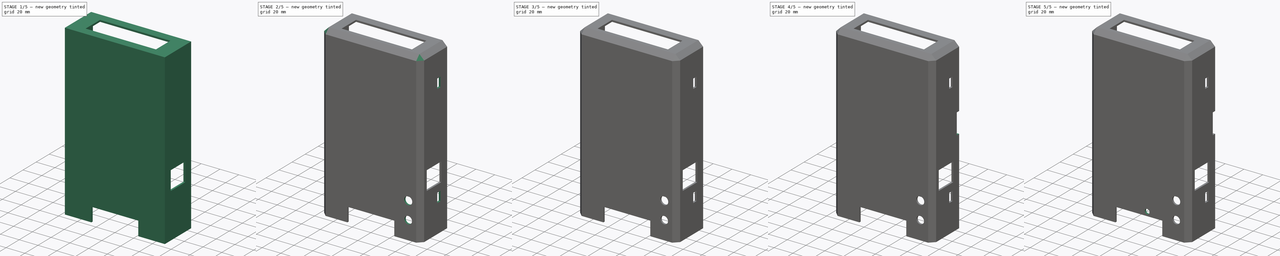
[diagram: build sequence overview — one tinted view per stage of 5, left to right]
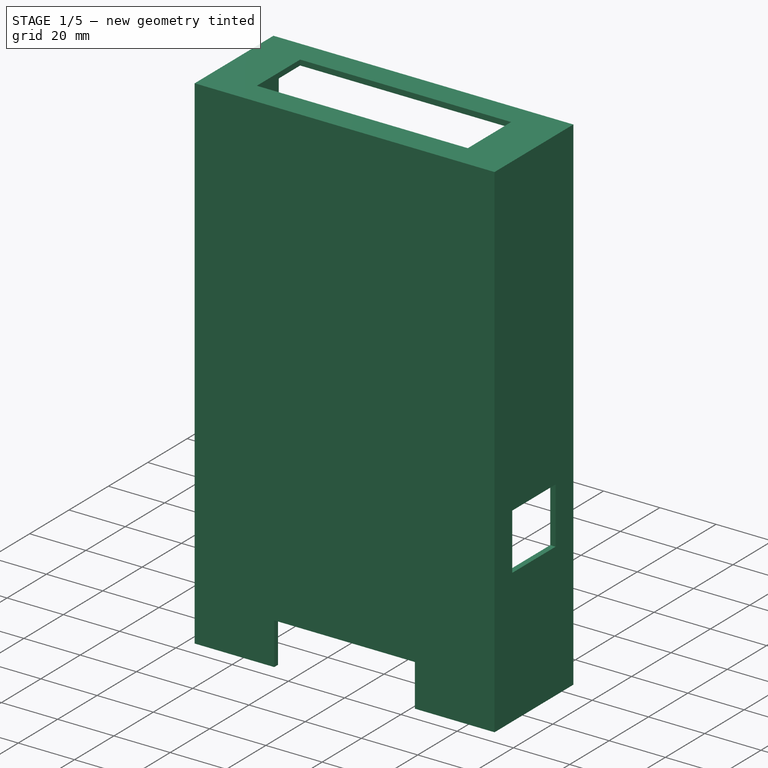
[diagram: stage 1 of 5 — iso view after this stage's code; geometry added in this stage tinted green]
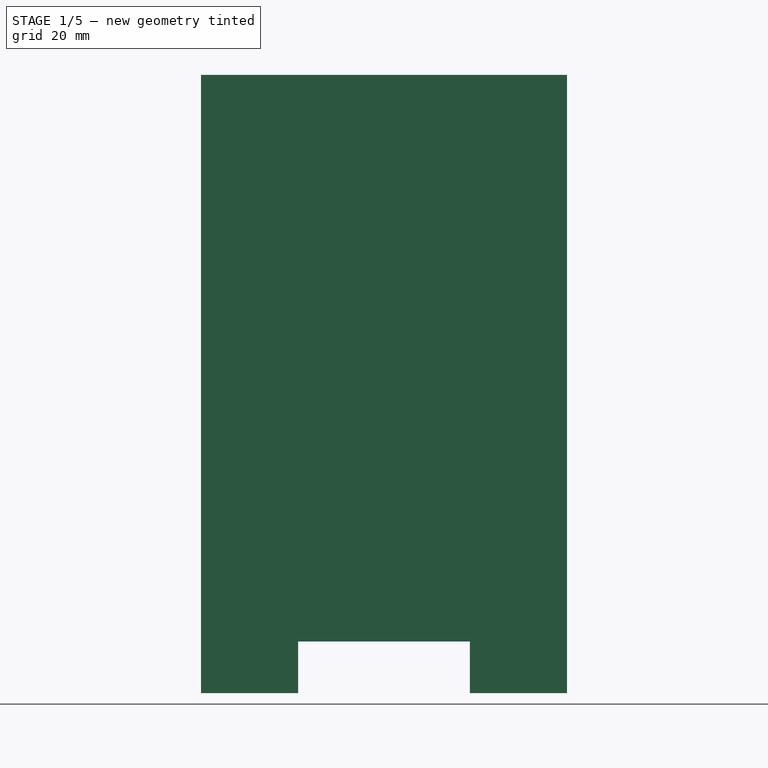
[diagram: stage 1 of 5 — front view after this stage's code; geometry added in this stage tinted green]
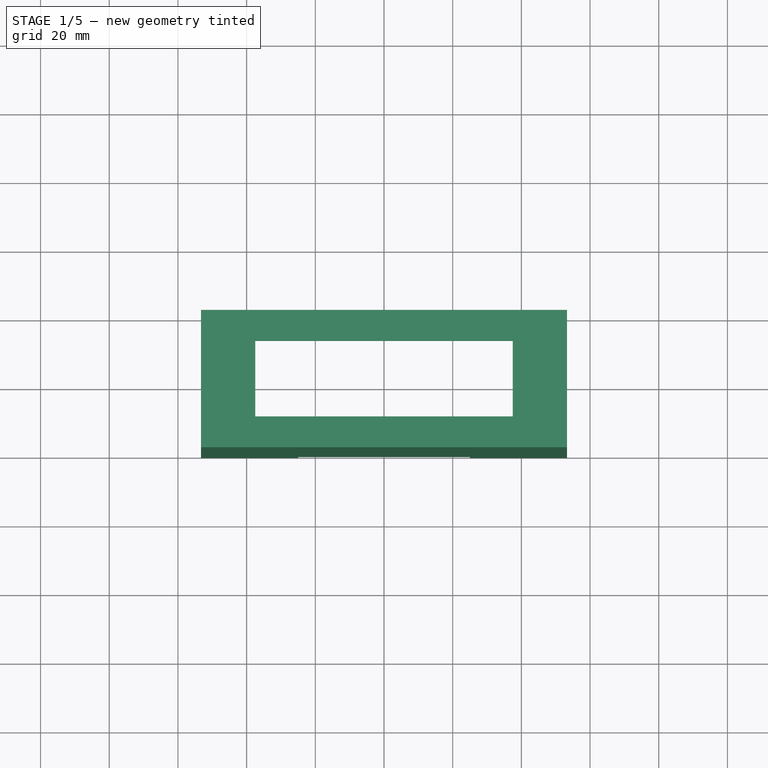
[diagram: stage 1 of 5 — top view after this stage's code; geometry added in this stage tinted green]
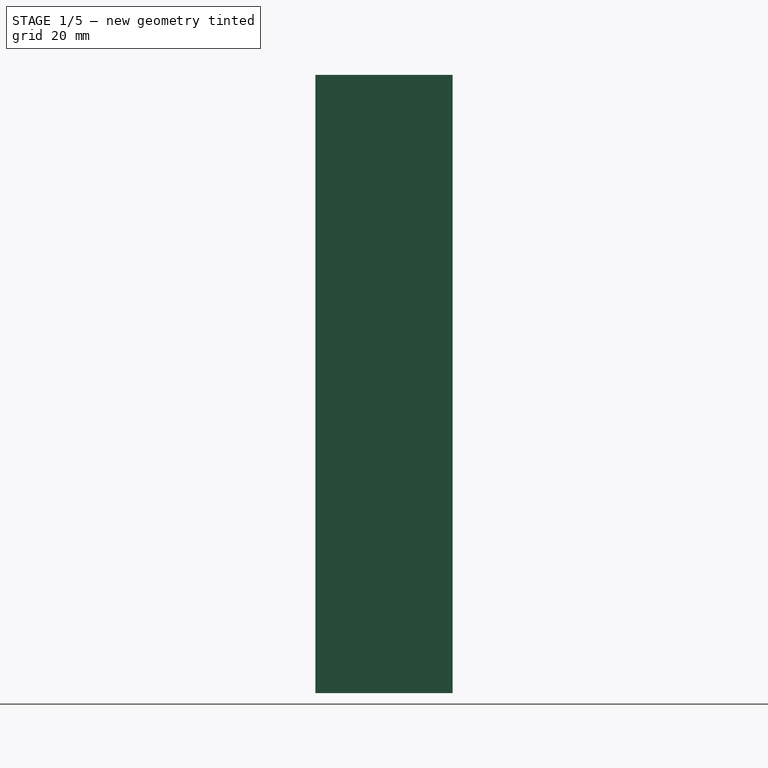
[diagram: stage 1 of 5 — right view after this stage's code; geometry added in this stage tinted green]
FCSTD DOCUMENT  (FreeCAD 0.19R19180 (Git))
Label: cover_mk2
License: All rights reserved
LicenseURL: http://en.wikipedia.org/wiki/All_rights_reserved
objects: Sketcher::SketchObject×20, PartDesign::Pocket×16, PartDesign::Chamfer×8, PartDesign::Pad×4, PartDesign::Body×1
note: 69 computed .brp shape members not serialized (recipe doc carries the construction recipe); baked Part::Feature solids carry a one-line shape summary decoded from their .brp

FEATURE [Sketcher::SketchObject] Sketch
  MapMode = 5
  Support = -> [XY_Plane]
  sketch-geometry (4):
    g0: LineSegment StartX=-53.3 StartY=20 StartZ=0 EndX=53.3 EndY=20 EndZ=0
    g1: LineSegment StartX=53.3 StartY=20 StartZ=0 EndX=53.3 EndY=-20 EndZ=0
    g2: LineSegment StartX=53.3 StartY=-20 StartZ=0 EndX=-53.3 EndY=-20 EndZ=0
    g3: LineSegment StartX=-53.3 StartY=-20 StartZ=0 EndX=-53.3 EndY=20 EndZ=0
  constraints (12):
    c: Coincident(g0,g1)
    c: Coincident(g1,g2)
    c: Coincident(g2,g3)
    c: Coincident(g3,g0)
    c: Horizontal(g0)
    c: Horizontal(g2)
    c: Vertical(g1)
    c: Vertical(g3)
    c: DistanceX(g0,g0) = 106.6
    c: DistanceY(g3,g3) = 40
    c: DistanceY(g-1,g0) = 20
    c: DistanceX(g0,g-1) = 53.3
FEATURE [PartDesign::Pad] Pad
  Length = 180
  Length2 = 100
  Profile = -> Sketch
  Type = 0
FEATURE [Sketcher::SketchObject] Sketch001
  ExternalGeometry = -> [Pad]
  MapMode = 5
  Placement = pos=(0,20,0) rot=(0,0.707107,0.707107;3.14159rad)
  Support = -> [Pad]
  sketch-geometry (4):
    g0: LineSegment StartX=-51.4 StartY=178.1 StartZ=0 EndX=51.4 EndY=178.1 EndZ=0
    g1: LineSegment StartX=51.4 StartY=178.1 StartZ=0 EndX=51.4 EndY=1.9 EndZ=0
    g2: LineSegment StartX=51.4 StartY=1.9 StartZ=0 EndX=-51.4 EndY=1.9 EndZ=0
    g3: LineSegment StartX=-51.4 StartY=1.9 StartZ=0 EndX=-51.4 EndY=178.1 EndZ=0
  constraints (12):
    c: Coincident(g0,g1)
    c: Coincident(g1,g2)
    c: Coincident(g2,g3)
    c: Coincident(g3,g0)
    c: Horizontal(g0)
    c: Horizontal(g2)
    c: Vertical(g1)
    c: Vertical(g3)
    c: DistanceX(g1,g-3) = 1.9
    c: DistanceY(g-3,g1) = 1.9
    c: DistanceY(g0,g-4) = 1.9
    c: DistanceX(g-4,g0) = 1.9
FEATURE [PartDesign::Pocket] Pocket
  BaseFeature = -> Pad
  Length = 38.1
  Length2 = 100
  Profile = -> Sketch001
  Type = 0
FEATURE [Sketcher::SketchObject] Sketch002
  ExternalGeometry = -> [Pocket]
  MapMode = 5
  Placement = pos=(0,20,0) rot=(0,0.707107,0.707107;3.14159rad)
  Support = -> [Pocket]
  sketch-geometry (4):
    g0: LineSegment StartX=-51.4 StartY=1.9 StartZ=0 EndX=51.4 EndY=1.9 EndZ=0
    g1: LineSegment StartX=51.4 StartY=1.9 StartZ=0 EndX=51.4 EndY=0 EndZ=0
    g2: LineSegment StartX=51.4 StartY=0 StartZ=0 EndX=-51.4 EndY=0 EndZ=0
    g3: LineSegment StartX=-51.4 StartY=0 StartZ=0 EndX=-51.4 EndY=1.9 EndZ=0
  constraints (11):
    c: Coincident(g0,g1)
    c: Coincident(g1,g2)
    c: Coincident(g2,g3)
    c: Coincident(g3,g0)
    c: Horizontal(g0)
    c: Horizontal(g2)
    c: Vertical(g1)
    c: Vertical(g3)
    c: Coincident(g0,g-3)
    c: DistanceY(g-4,g2) = 0
    c: DistanceX(g0,g-5) = 0
FEATURE [PartDesign::Pocket] Pocket001
  BaseFeature = -> Pocket
  Length = 38.1
  Length2 = 100
  Profile = -> Sketch002
  Type = 0
FEATURE [Sketcher::SketchObject] Sketch003
  MapMode = 5
  Placement = pos=(0,-20,0) rot=(1,0,0;1.5708rad)
  Support = -> [Pocket001]
  sketch-geometry (4):
    g0: LineSegment StartX=-25 StartY=0 StartZ=0 EndX=25 EndY=0 EndZ=0
    g1: LineSegment StartX=25 StartY=0 StartZ=0 EndX=25 EndY=15 EndZ=0
    g2: LineSegment StartX=25 StartY=15 StartZ=0 EndX=-25 EndY=15 EndZ=0
    g3: LineSegment StartX=-25 StartY=15 StartZ=0 EndX=-25 EndY=0 EndZ=0
  constraints (12):
    c: Coincident(g0,g1)
    c: Coincident(g1,g2)
    c: Coincident(g2,g3)
    c: Coincident(g3,g0)
    c: Horizontal(g0)
    c: Horizontal(g2)
    c: Vertical(g1)
    c: Vertical(g3)
    c: DistanceY(g-1,g0) = 0
    c: DistanceX(g2,g2) = 50
    c: DistanceX(g2,g-1) = 25
    c: DistanceY(g1,g1) = 15
FEATURE [PartDesign::Pocket] Pocket002
  BaseFeature = -> Pocket001
  Length = 5
  Length2 = 100
  Profile = -> Sketch003
  Type = 0
FEATURE [Sketcher::SketchObject] Sketch004
  MapMode = 5
  Placement = pos=(53.3,0,0) rot=(0.57735,0.57735,0.57735;2.0944rad)
  Support = -> [Pocket002]
  sketch-geometry (4):
    g0: LineSegment StartX=-11 StartY=67.7873 StartZ=0 EndX=11 EndY=67.7873 EndZ=0
    g1: LineSegment StartX=11 StartY=67.7873 StartZ=0 EndX=11 EndY=47.7873 EndZ=0
    g2: LineSegment StartX=11 StartY=47.7873 StartZ=0 EndX=-11 EndY=47.7873 EndZ=0
    g3: LineSegment StartX=-11 StartY=47.7873 StartZ=0 EndX=-11 EndY=67.7873 EndZ=0
  constraints (11):
    c: Coincident(g0,g1)
    c: Coincident(g1,g2)
    c: Coincident(g2,g3)
    c: Coincident(g3,g0)
    c: Horizontal(g0)
    c: Horizontal(g2)
    c: Vertical(g1)
    c: Vertical(g3)
    c: DistanceX(g0,g0) = 22
    c: DistanceX(g2,g-1) = 11
    c: DistanceY(g1,g1) = 20
FEATURE [PartDesign::Pocket] Pocket003
  BaseFeature = -> Pocket002
  Length = 5
  Length2 = 100
  Profile = -> Sketch004
  Type = 0
FEATURE [Sketcher::SketchObject] Sketch005
  MapMode = 5
  Placement = pos=(0,0,180) rot=(0,0,1;0rad)
  Support = -> [Pocket003]
  sketch-geometry (4):
    g0: LineSegment StartX=-37.5 StartY=11 StartZ=0 EndX=37.5 EndY=11 EndZ=0
    g1: LineSegment StartX=37.5 StartY=11 StartZ=0 EndX=37.5 EndY=-11 EndZ=0
    g2: LineSegment StartX=37.5 StartY=-11 StartZ=0 EndX=-37.5 EndY=-11 EndZ=0
    g3: LineSegment StartX=-37.5 StartY=-11 StartZ=0 EndX=-37.5 EndY=11 EndZ=0
  constraints (12):
    c: Coincident(g0,g1)
    c: Coincident(g1,g2)
    c: Coincident(g2,g3)
    c: Coincident(g3,g0)
    c: Horizontal(g0)
    c: Horizontal(g2)
    c: Vertical(g1)
    c: Vertical(g3)
    c: DistanceY(g1,g1) = 22
    c: DistanceY(g-1,g0) = 11
    c: DistanceX(g0,g0) = 75
    c: DistanceX(g0,g-1) = 37.5
FEATURE [PartDesign::Pocket] Pocket004
  BaseFeature = -> Pocket003
  Length = 5
  Length2 = 100
  Profile = -> Sketch005
  Type = 0
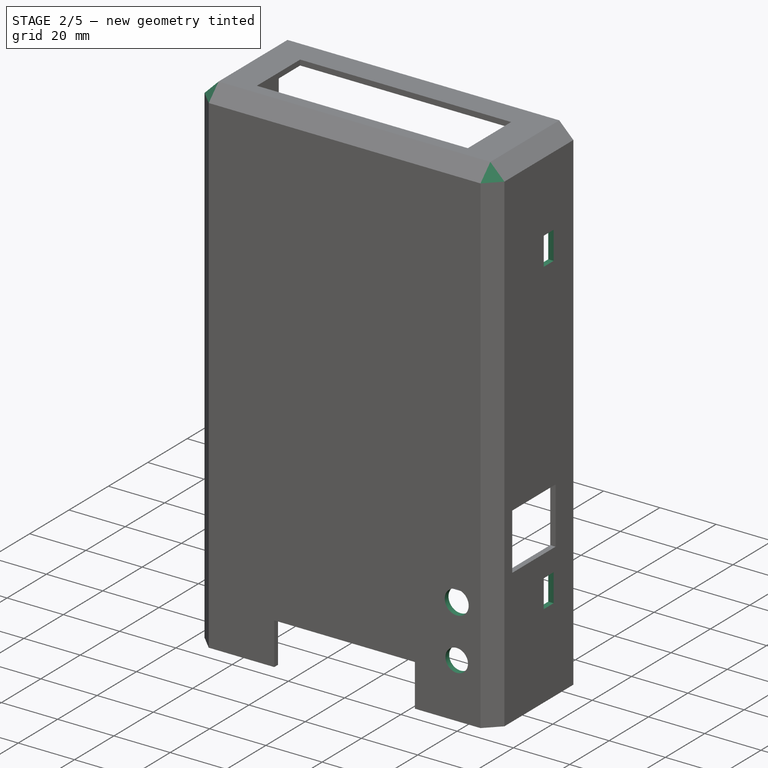
[diagram: stage 2 of 5 — iso view after this stage's code; geometry added in this stage tinted green]
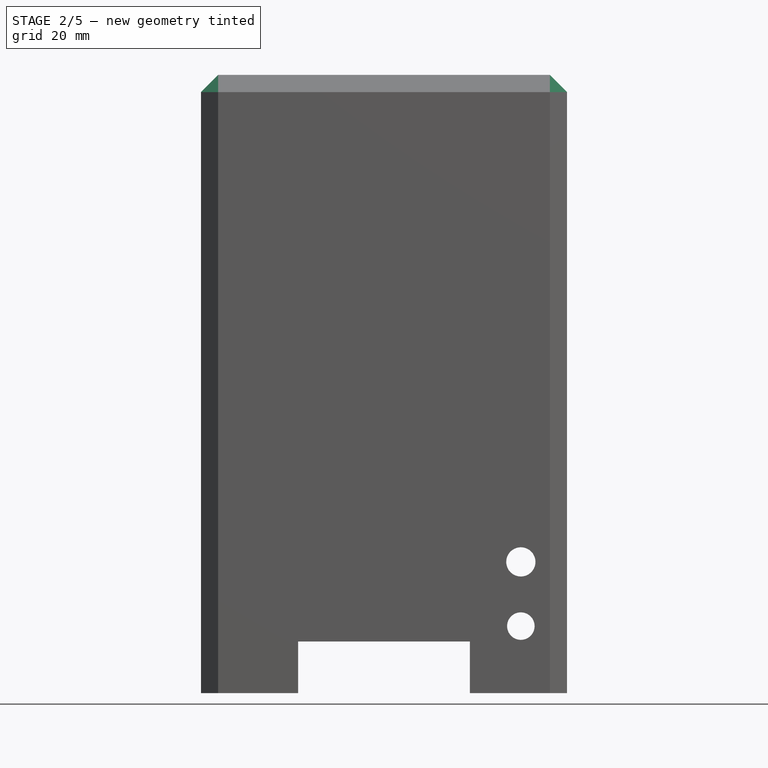
[diagram: stage 2 of 5 — front view after this stage's code; geometry added in this stage tinted green]
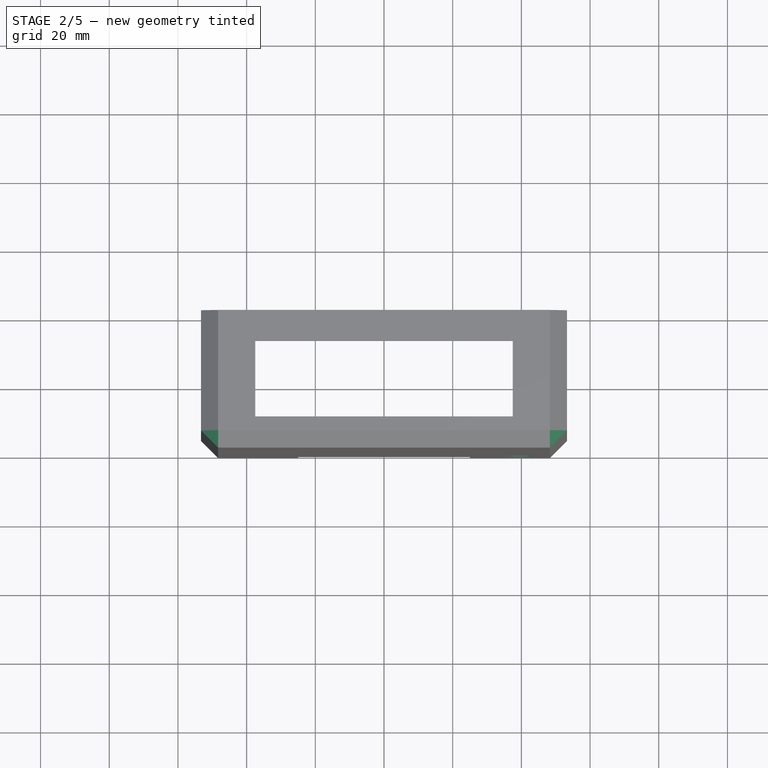
[diagram: stage 2 of 5 — top view after this stage's code; geometry added in this stage tinted green]
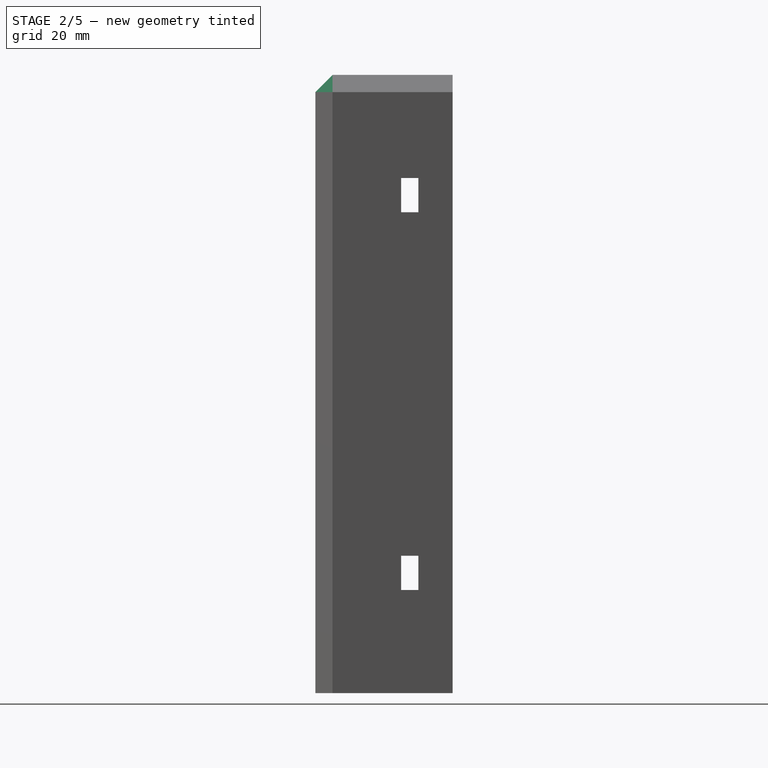
[diagram: stage 2 of 5 — right view after this stage's code; geometry added in this stage tinted green]
FEATURE [Sketcher::SketchObject] Sketch006
  ExternalGeometry = -> [Pocket004]
  MapMode = 5
  Placement = pos=(0,-20,0) rot=(1,0,0;1.5708rad)
  Support = -> [Pocket004]
  sketch-geometry (2):
    g0: Circle CenterX=39.85 CenterY=19.5 CenterZ=0 NormalX=0 NormalY=0 NormalZ=1 AngleXU=0 Radius=4
    g1: Circle CenterX=39.85 CenterY=38.2 CenterZ=0 NormalX=0 NormalY=0 NormalZ=1 AngleXU=0 Radius=4.25
  constraints (6):
    c: Diameter(g1) = 8.5
    c: Diameter(g0) = 8
    c: DistanceX(g0,g-3) = 13.45
    c: Vertical(g0,g1)
    c: DistanceY(g-3,g0) = 19.5
    c: DistanceY(g-3,g1) = 38.2
FEATURE [PartDesign::Pocket] Pocket005
  BaseFeature = -> Pocket004
  Length = 5
  Length2 = 100
  Profile = -> Sketch006
  Type = 0
FEATURE [PartDesign::Chamfer] Chamfer
  Base = -> Pocket005 [Edge19,Edge18,Edge21,Edge27,Edge20]
  BaseFeature = -> Pocket005
  Size = 5
FEATURE [PartDesign::Chamfer] Chamfer001
  Base = -> Chamfer [Edge50,Edge33,Edge42,Edge41,Edge34]
  BaseFeature = -> Chamfer
  Size = 5
FEATURE [Sketcher::SketchObject] Sketch007
  ExternalGeometry = -> [Chamfer001]
  MapMode = 5
  Placement = pos=(53.3,0,0) rot=(0.57735,0.57735,0.57735;2.0944rad)
  Support = -> [Chamfer001]
  sketch-geometry (8):
    g0: LineSegment StartX=5 StartY=150 StartZ=0 EndX=10 EndY=150 EndZ=0
    g1: LineSegment StartX=10 StartY=150 StartZ=0 EndX=10 EndY=140 EndZ=0
    g2: LineSegment StartX=10 StartY=140 StartZ=0 EndX=5 EndY=140 EndZ=0
    g3: LineSegment StartX=5 StartY=140 StartZ=0 EndX=5 EndY=150 EndZ=0
    g4: LineSegment StartX=5 StartY=40 StartZ=0 EndX=10 EndY=40 EndZ=0
    g5: LineSegment StartX=10 StartY=40 StartZ=0 EndX=10 EndY=30 EndZ=0
    g6: LineSegment StartX=10 StartY=30 StartZ=0 EndX=5 EndY=30 EndZ=0
    g7: LineSegment StartX=5 StartY=30 StartZ=0 EndX=5 EndY=40 EndZ=0
  constraints (24):
    c: Coincident(g0,g1)
    c: Coincident(g1,g2)
    c: Coincident(g2,g3)
    c: Coincident(g3,g0)
    c: Horizontal(g0)
    c: Horizontal(g2)
    c: Vertical(g1)
    c: Vertical(g3)
    c: Coincident(g4,g5)
    c: Coincident(g5,g6)
    c: Coincident(g6,g7)
    c: Coincident(g7,g4)
    c: Horizontal(g4)
    c: Horizontal(g6)
    c: Vertical(g5)
    c: Vertical(g7)
    c: DistanceY(g5,g5) = 10
    c: DistanceX(g4,g4) = 5
    c: Equal(g5,g1)
    c: Equal(g0,g4)
    c: DistanceY(g0,g-3) = 30
    c: DistanceX(g0,g-3) = 10
    c: DistanceY(g-4,g5) = 30
    c: DistanceX(g5,g-4) = 10
FEATURE [PartDesign::Pocket] Pocket006
  BaseFeature = -> Chamfer001
  Length = 5
  Length2 = 100
  Profile = -> Sketch007
  Type = 0
FEATURE [Sketcher::SketchObject] Sketch008
  ExternalGeometry = -> [Pocket006]
  MapMode = 5
  Placement = pos=(-53.3,0,0) rot=(0.57735,-0.57735,-0.57735;2.0944rad)
  Support = -> [Pocket006]
  sketch-geometry (8):
    g0: LineSegment StartX=-5 StartY=150 StartZ=0 EndX=-10 EndY=150 EndZ=0
    g1: LineSegment StartX=-10 StartY=150 StartZ=0 EndX=-10 EndY=140 EndZ=0
    g2: LineSegment StartX=-10 StartY=140 StartZ=0 EndX=-5 EndY=140 EndZ=0
    g3: LineSegment StartX=-5 StartY=140 StartZ=0 EndX=-5 EndY=150 EndZ=0
    g4: LineSegment StartX=-10 StartY=40 StartZ=0 EndX=-5 EndY=40 EndZ=0
    g5: LineSegment StartX=-5 StartY=40 StartZ=0 EndX=-5 EndY=30 EndZ=0
    g6: LineSegment StartX=-5 StartY=30 StartZ=0 EndX=-10 EndY=30 EndZ=0
    g7: LineSegment StartX=-10 StartY=30 StartZ=0 EndX=-10 EndY=40 EndZ=0
  constraints (24):
    c: Coincident(g0,g1)
    c: Coincident(g1,g2)
    c: Coincident(g2,g3)
    c: Coincident(g3,g0)
    c: Horizontal(g0)
    c: Horizontal(g2)
    c: Vertical(g1)
    c: Vertical(g3)
    c: Coincident(g4,g5)
    c: Coincident(g5,g6)
    c: Coincident(g6,g7)
    c: Coincident(g7,g4)
    c: Horizontal(g4)
    c: Horizontal(g6)
    c: Vertical(g5)
    c: Vertical(g7)
    c: DistanceY(g0,g-4) = 30
    c: DistanceX(g0,g0) = 5
    c: DistanceY(g3,g3) = 10
    c: DistanceX(g-4,g0) = 10
    c: Equal(g3,g5)
    c: Equal(g2,g6)
    c: DistanceX(g-3,g6) = 10
    c: DistanceY(g-3,g6) = 30
FEATURE [PartDesign::Pocket] Pocket007
  BaseFeature = -> Pocket006
  Length = 5
  Length2 = 100
  Profile = -> Sketch008
  Type = 0
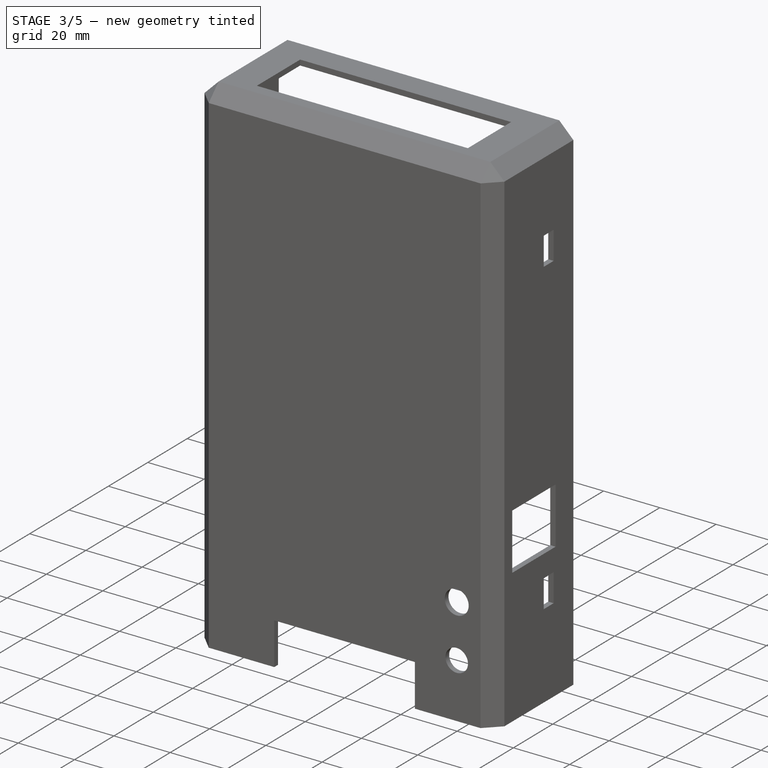
[diagram: stage 3 of 5 — iso view after this stage's code; geometry added in this stage tinted green]
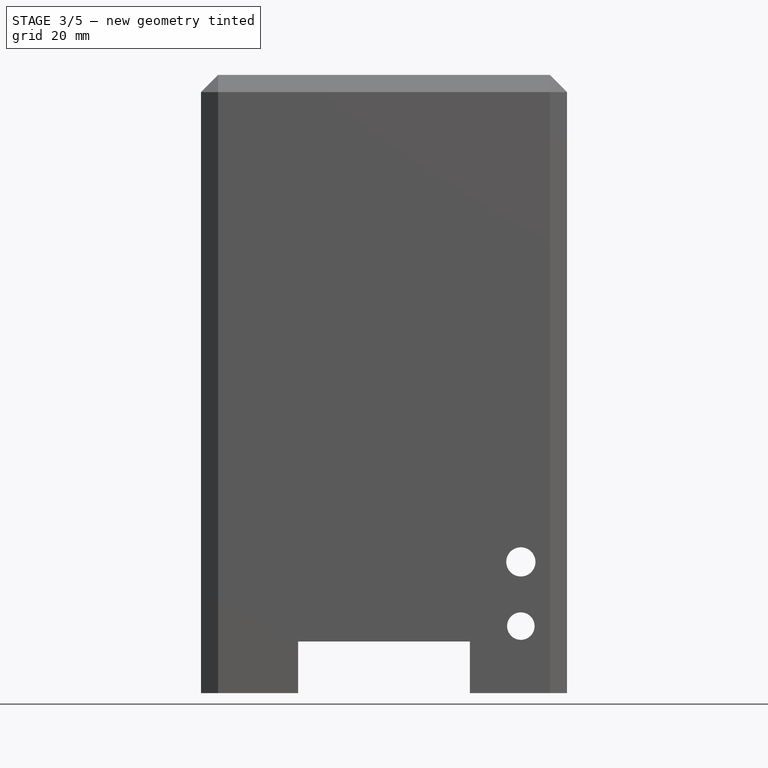
[diagram: stage 3 of 5 — front view after this stage's code; geometry added in this stage tinted green]
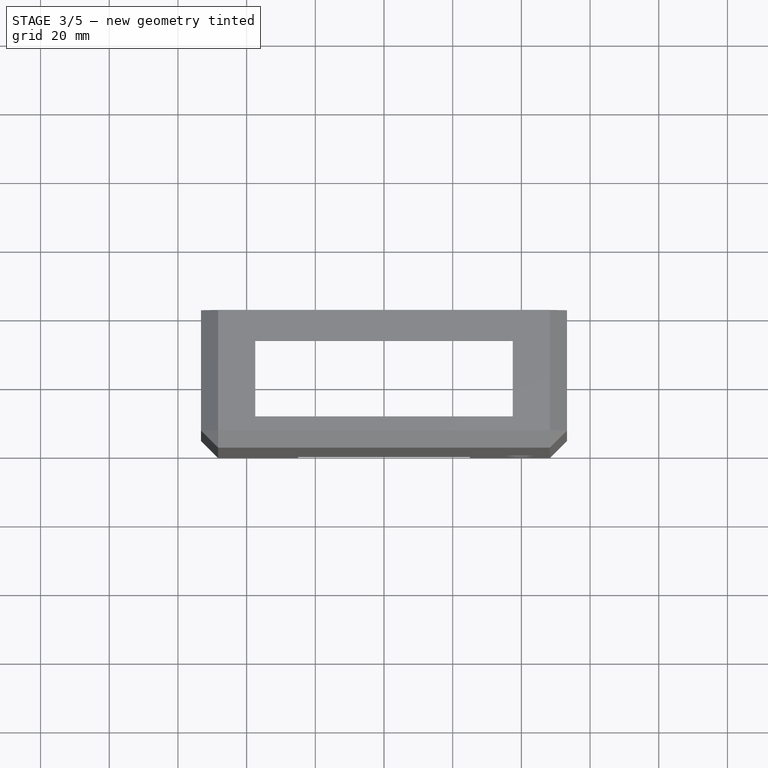
[diagram: stage 3 of 5 — top view after this stage's code; geometry added in this stage tinted green]
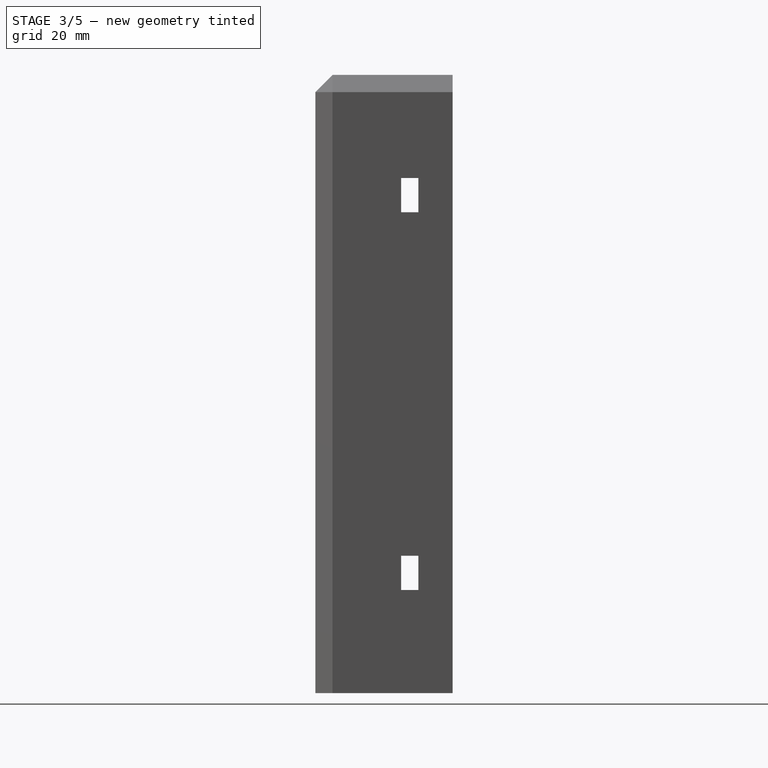
[diagram: stage 3 of 5 — right view after this stage's code; geometry added in this stage tinted green]
FEATURE [Sketcher::SketchObject] Sketch009
  ExternalGeometry = -> [Pocket007]
  MapMode = 5
  Placement = pos=(-53.3,0,0) rot=(0.57735,-0.57735,-0.57735;2.0944rad)
  Support = -> [Pocket007]
  sketch-geometry (4):
    g0: LineSegment StartX=-20 StartY=22.5 StartZ=0 EndX=-0.2 EndY=22.5 EndZ=0
    g1: LineSegment StartX=-0.2 StartY=22.5 StartZ=0 EndX=-0.2 EndY=12.5 EndZ=0
    g2: LineSegment StartX=-0.2 StartY=12.5 StartZ=0 EndX=-20 EndY=12.5 EndZ=0
    g3: LineSegment StartX=-20 StartY=12.5 StartZ=0 EndX=-20 EndY=22.5 EndZ=0
  constraints (12):
    c: Coincident(g0,g1)
    c: Coincident(g1,g2)
    c: Coincident(g2,g3)
    c: Coincident(g3,g0)
    c: Horizontal(g0)
    c: Horizontal(g2)
    c: Vertical(g1)
    c: Vertical(g3)
    c: DistanceY(g1,g1) = 10
    c: DistanceX(g-3,g2) = 0
    c: DistanceY(g-3,g2) = 12.5
    c: DistanceX(g2,g2) = 19.8
FEATURE [PartDesign::Pocket] Pocket008
  BaseFeature = -> Pocket007
  Length = 5
  Length2 = 100
  Profile = -> Sketch009
  Type = 0
FEATURE [Sketcher::SketchObject] Sketch010
  ExternalGeometry = -> [Pocket008]
  MapMode = 5
  Placement = pos=(-51.4,0,0) rot=(0.57735,0.57735,0.57735;2.0944rad)
  Support = -> [Pocket008]
  sketch-geometry (4):
    g0: LineSegment StartX=-20 StartY=5 StartZ=0 EndX=20 EndY=5 EndZ=0
    g1: LineSegment StartX=20 StartY=5 StartZ=0 EndX=20 EndY=0 EndZ=0
    g2: LineSegment StartX=20 StartY=0 StartZ=0 EndX=-20 EndY=0 EndZ=0
    g3: LineSegment StartX=-20 StartY=0 StartZ=0 EndX=-20 EndY=5 EndZ=0
  constraints (11):
    c: Coincident(g0,g1)
    c: Coincident(g1,g2)
    c: Coincident(g2,g3)
    c: Coincident(g3,g0)
    c: Horizontal(g0)
    c: Horizontal(g2)
    c: Vertical(g1)
    c: Vertical(g3)
    c: Coincident(g1,g-3)
    c: DistanceY(g1,g1) = 5
    c: DistanceX(g-4,g2) = 0
FEATURE [PartDesign::Pad] Pad001
  BaseFeature = -> Pocket008
  Length = 5
  Length2 = 100
  Profile = -> Sketch010
  Type = 0
FEATURE [PartDesign::Chamfer] Chamfer002
  Base = -> Pad001 [Edge92]
  BaseFeature = -> Pad001
  Size = 3.099
FEATURE [PartDesign::Chamfer] Chamfer003
  Base = -> Chamfer002 [Edge62]
  BaseFeature = -> Chamfer002
  Size = 3
FEATURE [Sketcher::SketchObject] Sketch011
  ExternalGeometry = -> [Chamfer003]
  MapMode = 5
  Placement = pos=(51.4,0,0) rot=(0.57735,-0.57735,-0.57735;2.0944rad)
  Support = -> [Chamfer003]
  sketch-geometry (4):
    g0: LineSegment StartX=-20 StartY=0 StartZ=0 EndX=20 EndY=0 EndZ=0
    g1: LineSegment StartX=20 StartY=0 StartZ=0 EndX=20 EndY=5 EndZ=0
    g2: LineSegment StartX=20 StartY=5 StartZ=0 EndX=-20 EndY=5 EndZ=0
    g3: LineSegment StartX=-20 StartY=5 StartZ=0 EndX=-20 EndY=0 EndZ=0
  constraints (11):
    c: Coincident(g0,g1)
    c: Coincident(g1,g2)
    c: Coincident(g2,g3)
    c: Coincident(g3,g0)
    c: Horizontal(g0)
    c: Horizontal(g2)
    c: Vertical(g1)
    c: Vertical(g3)
    c: Coincident(g0,g-4)
    c: DistanceX(g0,g-3) = 0
    c: DistanceY(g3,g3) = 5
FEATURE [PartDesign::Pad] Pad002
  BaseFeature = -> Chamfer003
  Length = 5
  Length2 = 100
  Profile = -> Sketch011
  Type = 0
FEATURE [PartDesign::Chamfer] Chamfer004
  Base = -> Pad002 [Edge214]
  BaseFeature = -> Pad002
  Size = 3.099
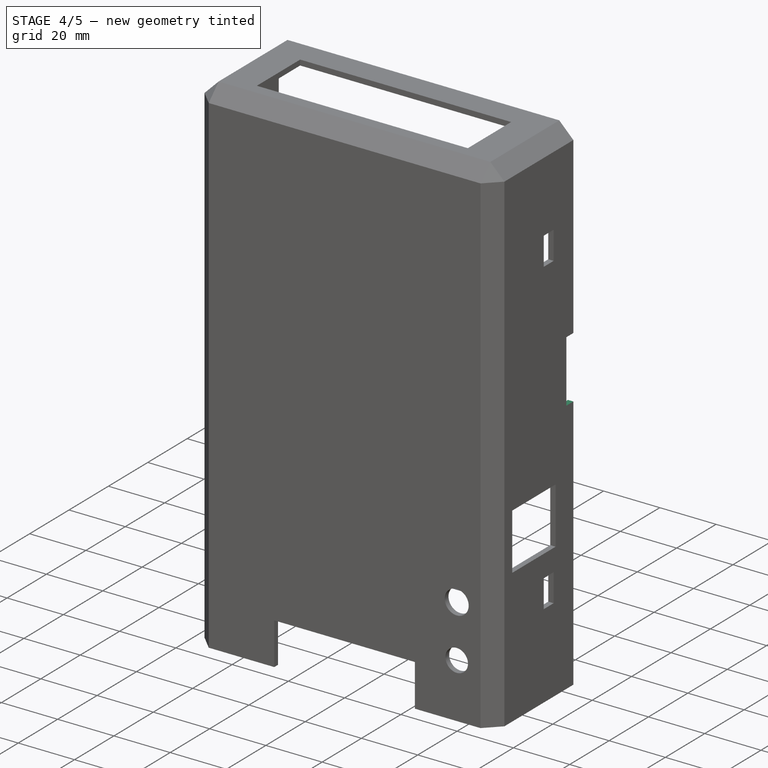
[diagram: stage 4 of 5 — iso view after this stage's code; geometry added in this stage tinted green]
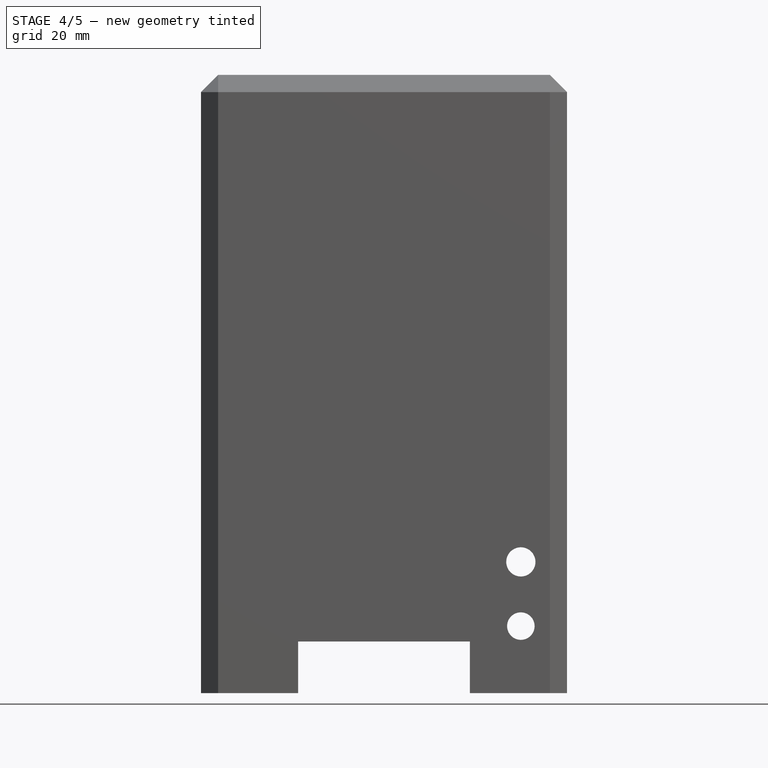
[diagram: stage 4 of 5 — front view after this stage's code; geometry added in this stage tinted green]
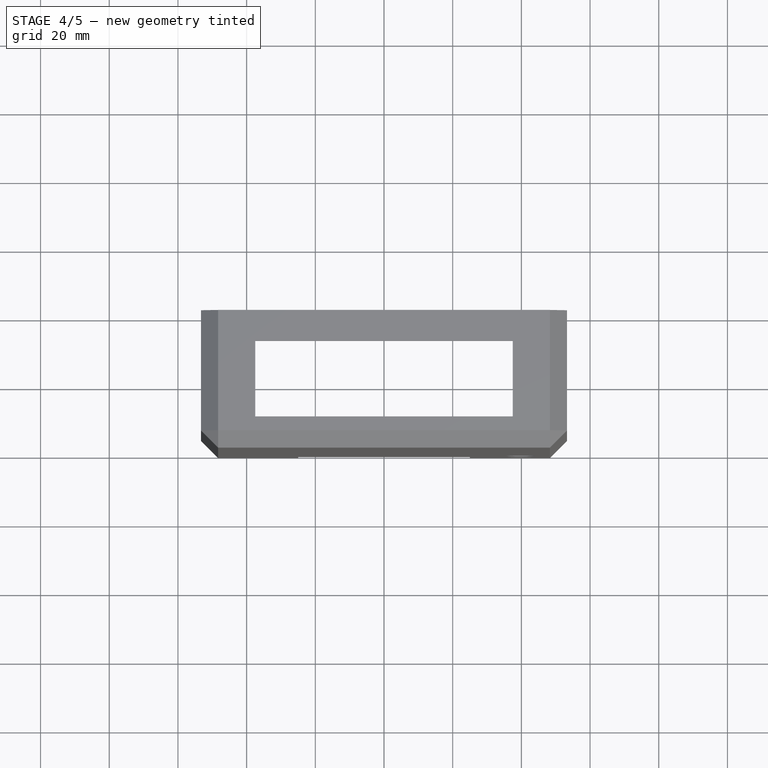
[diagram: stage 4 of 5 — top view after this stage's code; geometry added in this stage tinted green]
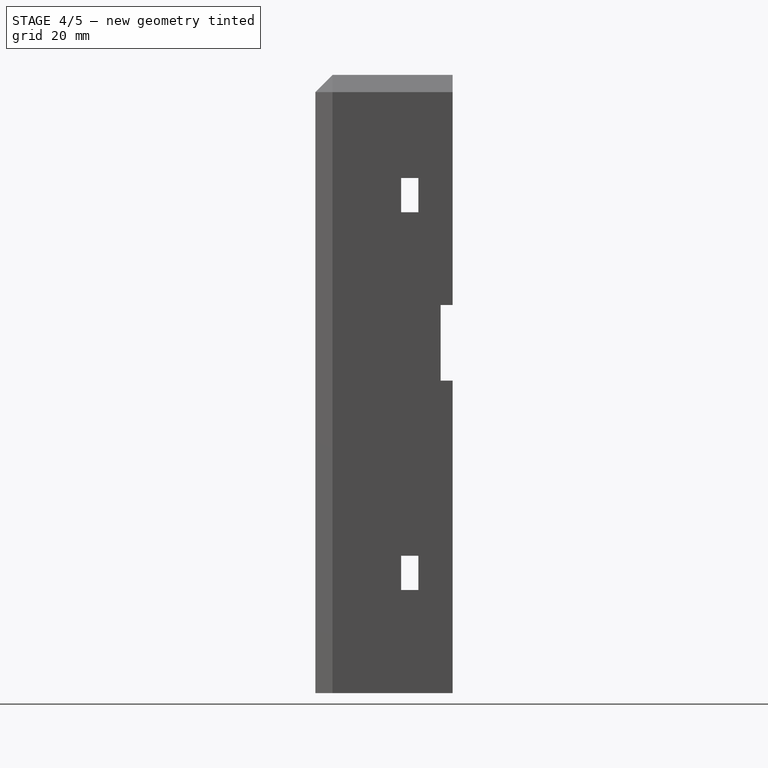
[diagram: stage 4 of 5 — right view after this stage's code; geometry added in this stage tinted green]
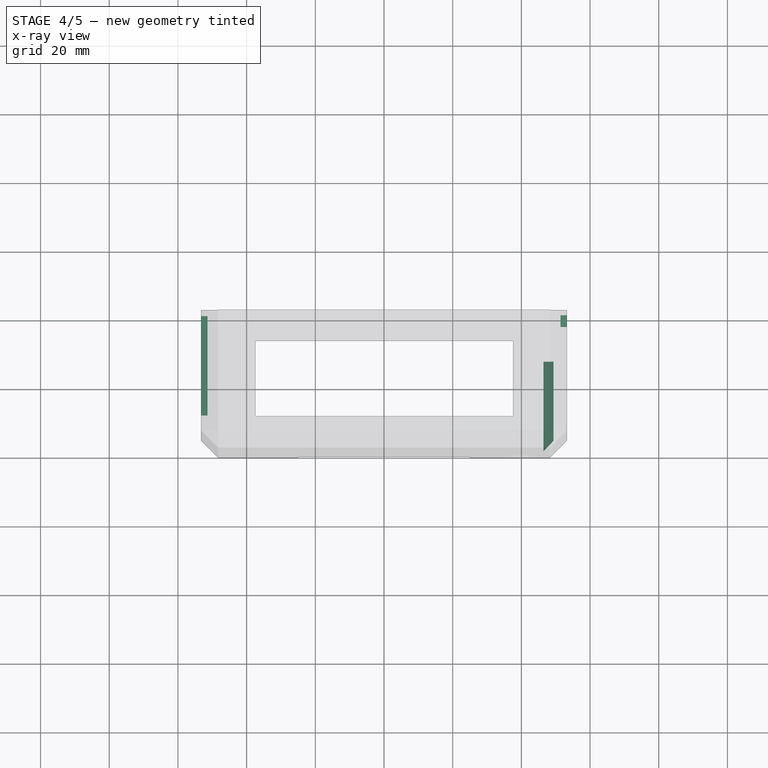
[diagram: stage 4 of 5 — x-ray composite at the top view; earlier geometry ghosted, this stage's added geometry solid]
FEATURE [PartDesign::Chamfer] Chamfer005
  Base = -> Chamfer004 [Edge167]
  BaseFeature = -> Chamfer004
  Size = 3
FEATURE [Sketcher::SketchObject] Sketch012
  ExternalGeometry = -> [Chamfer005]
  MapMode = 5
  Placement = pos=(53.3,0,0) rot=(0.57735,0.57735,0.57735;2.0944rad)
  Support = -> [Chamfer005]
  sketch-geometry (4):
    g0: LineSegment StartX=16.5 StartY=113 StartZ=0 EndX=20 EndY=113 EndZ=0
    g1: LineSegment StartX=20 StartY=113 StartZ=0 EndX=20 EndY=91 EndZ=0
    g2: LineSegment StartX=20 StartY=91 StartZ=0 EndX=16.5 EndY=91 EndZ=0
    g3: LineSegment StartX=16.5 StartY=91 StartZ=0 EndX=16.5 EndY=113 EndZ=0
  constraints (12):
    c: Coincident(g0,g1)
    c: Coincident(g1,g2)
    c: Coincident(g2,g3)
    c: Coincident(g3,g0)
    c: Horizontal(g0)
    c: Horizontal(g2)
    c: Vertical(g1)
    c: Vertical(g3)
    c: DistanceX(g0,g0) = 3.5
    c: Vertical(g1,g-3)
    c: DistanceY(g1,g1) = 22
    c: DistanceY(g-3,g1) = 91
FEATURE [PartDesign::Pocket] Pocket009
  BaseFeature = -> Chamfer005
  Length = 5
  Length2 = 100
  Profile = -> Sketch012
  Type = 0
FEATURE [Sketcher::SketchObject] Sketch013
  ExternalGeometry = -> [Pocket009]
  MapMode = 5
  Placement = pos=(-53.3,0,0) rot=(0.57735,-0.57735,-0.57735;2.0944rad)
  Support = -> [Pocket009]
  sketch-geometry (4):
    g0: LineSegment StartX=-20 StartY=113 StartZ=0 EndX=-16.5 EndY=113 EndZ=0
    g1: LineSegment StartX=-16.5 StartY=113 StartZ=0 EndX=-16.5 EndY=91 EndZ=0
    g2: LineSegment StartX=-16.5 StartY=91 StartZ=0 EndX=-20 EndY=91 EndZ=0
    g3: LineSegment StartX=-20 StartY=91 StartZ=0 EndX=-20 EndY=113 EndZ=0
  constraints (12):
    c: Coincident(g0,g1)
    c: Coincident(g1,g2)
    c: Coincident(g2,g3)
    c: Coincident(g3,g0)
    c: Horizontal(g0)
    c: Horizontal(g2)
    c: Vertical(g1)
    c: Vertical(g3)
    c: DistanceX(g-3,g2) = 0
    c: DistanceX(g0,g0) = 3.5
    c: DistanceY(g1,g1) = 22
    c: DistanceY(g-1,g1) = 91
FEATURE [PartDesign::Pocket] Pocket010
  BaseFeature = -> Pocket009
  Length = 5
  Length2 = 100
  Profile = -> Sketch013
  Type = 0
FEATURE [Sketcher::SketchObject] Sketch014
  ExternalGeometry = -> [Pocket010]
  MapMode = 5
  Placement = pos=(-53.3,0,0) rot=(0.57735,-0.57735,-0.57735;2.0944rad)
  Support = -> [Pocket010]
  sketch-geometry (4):
    g0: LineSegment StartX=-20 StartY=126 StartZ=0 EndX=9 EndY=126 EndZ=0
    g1: LineSegment StartX=9 StartY=126 StartZ=0 EndX=9 EndY=76 EndZ=0
    g2: LineSegment StartX=9 StartY=76 StartZ=0 EndX=-20 EndY=76 EndZ=0
    g3: LineSegment StartX=-20 StartY=76 StartZ=0 EndX=-20 EndY=126 EndZ=0
  constraints (12):
    c: Coincident(g0,g1)
    c: Coincident(g1,g2)
    c: Coincident(g2,g3)
    c: Coincident(g3,g0)
    c: Horizontal(g0)
    c: Horizontal(g2)
    c: Vertical(g1)
    c: Vertical(g3)
    c: DistanceY(g1,g1) = 50
    c: DistanceX(g0,g0) = 29
    c: Vertical(g-3,g2)
    c: DistanceY(g2,g-3) = 15
FEATURE [PartDesign::Pocket] Pocket011
  BaseFeature = -> Pocket010
  Length = 5
  Length2 = 100
  Profile = -> Sketch014
  Type = 0
FEATURE [Sketcher::SketchObject] Sketch015
  ExternalGeometry = -> [Pocket011]
  MapMode = 5
  Placement = pos=(0,0,0) rot=(1,0,0;3.14159rad)
  Support = -> [Pocket011]
  sketch-geometry (4):
    g0: LineSegment StartX=-51.4 StartY=-8 StartZ=0 EndX=51.4 EndY=-8 EndZ=0
    g1: LineSegment StartX=51.4 StartY=-8 StartZ=0 EndX=51.4 EndY=-20 EndZ=0
    g2: LineSegment StartX=51.4 StartY=-20 StartZ=0 EndX=-51.4 EndY=-20 EndZ=0
    g3: LineSegment StartX=-51.4 StartY=-20 StartZ=0 EndX=-51.4 EndY=-8 EndZ=0
  constraints (11):
    c: Coincident(g0,g1)
    c: Coincident(g1,g2)
    c: Coincident(g2,g3)
    c: Coincident(g3,g0)
    c: Horizontal(g0)
    c: Horizontal(g2)
    c: Vertical(g1)
    c: Vertical(g3)
    c: Coincident(g-3,g1)
    c: Vertical(g2,g-4)
    c: DistanceY(g3,g3) = 12
FEATURE [PartDesign::Pocket] Pocket012
  BaseFeature = -> Pocket011
  Length = 5
  Length2 = 100
  Profile = -> Sketch015
  Type = 0
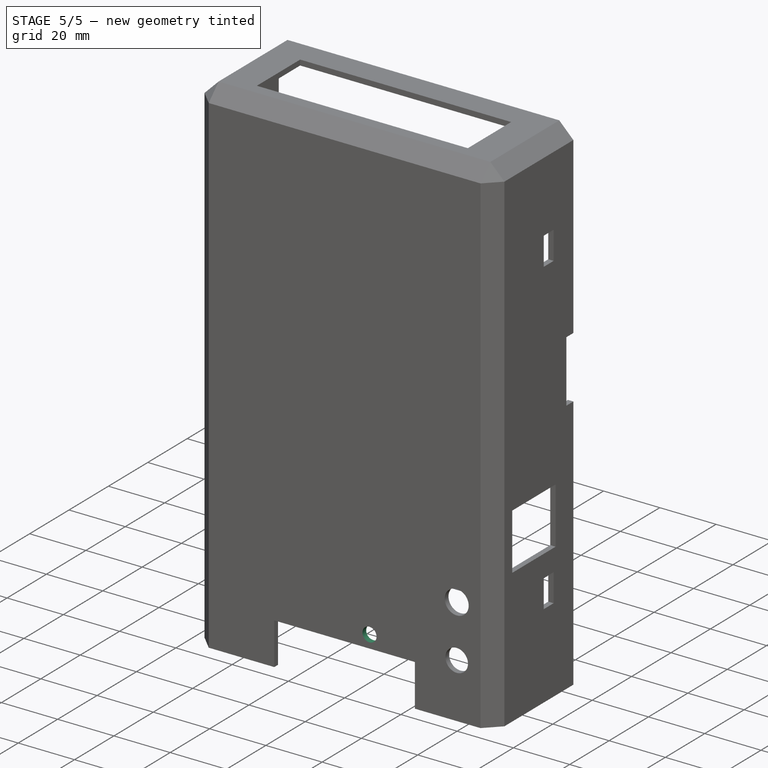
[diagram: stage 5 of 5 — iso view after this stage's code; geometry added in this stage tinted green]
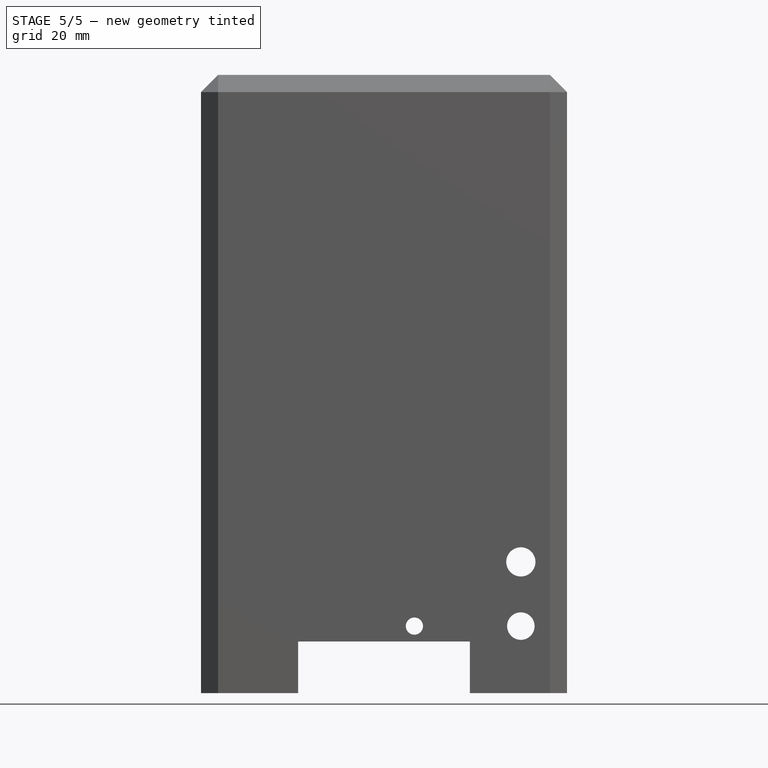
[diagram: stage 5 of 5 — front view after this stage's code; geometry added in this stage tinted green]
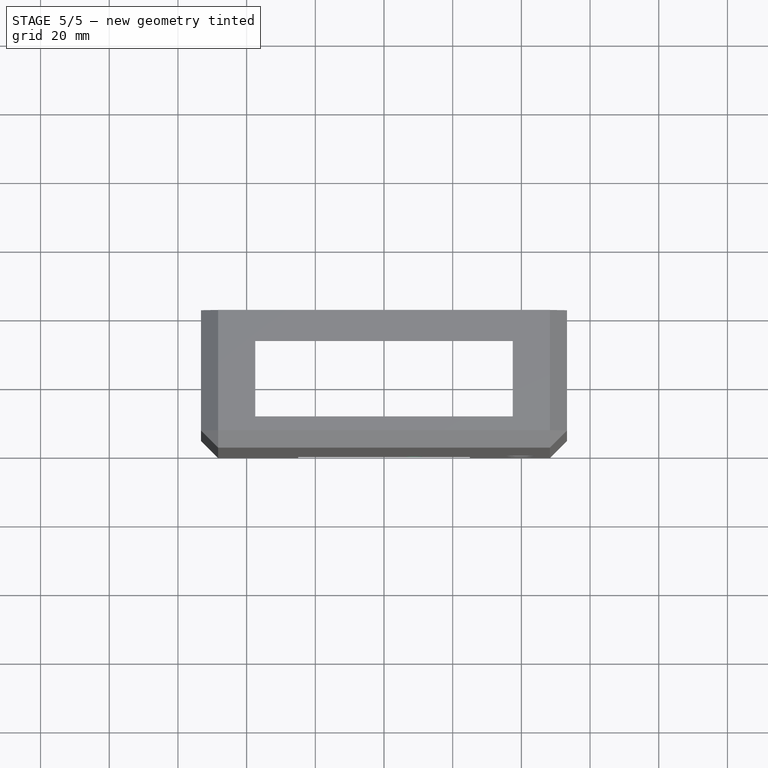
[diagram: stage 5 of 5 — top view after this stage's code; geometry added in this stage tinted green]
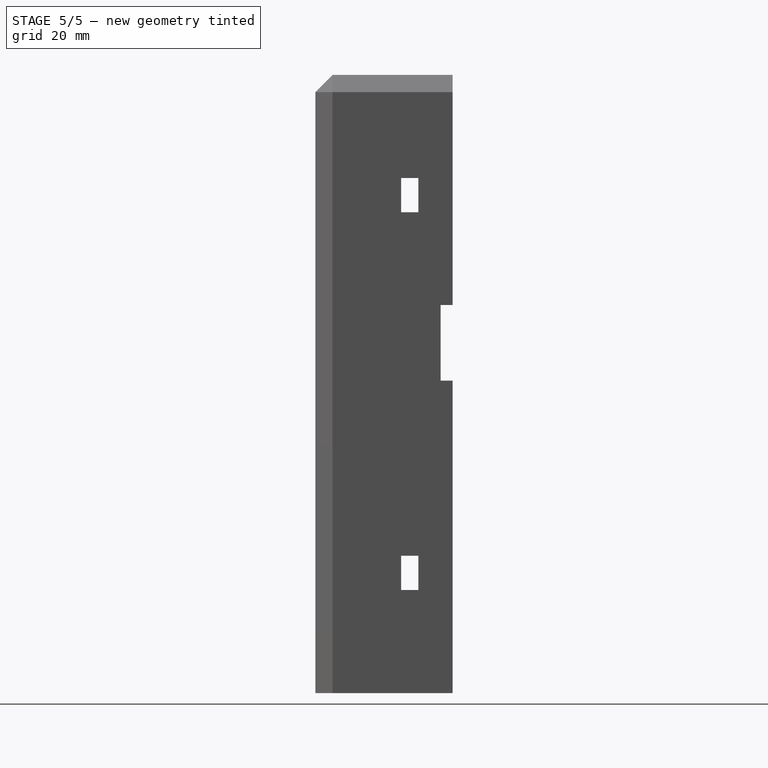
[diagram: stage 5 of 5 — right view after this stage's code; geometry added in this stage tinted green]
FEATURE [Sketcher::SketchObject] Sketch016
  ExternalGeometry = -> [Pocket012]
  MapMode = 5
  Placement = pos=(-53.3,0,0) rot=(0.57735,-0.57735,-0.57735;2.0944rad)
  Support = -> [Pocket012]
  sketch-geometry (4):
    g0: LineSegment StartX=-20 StartY=12.5 StartZ=0 EndX=-10 EndY=12.5 EndZ=0
    g1: LineSegment StartX=-10 StartY=12.5 StartZ=0 EndX=-10 EndY=0 EndZ=0
    g2: LineSegment StartX=-10 StartY=0 StartZ=0 EndX=-20 EndY=0 EndZ=0
    g3: LineSegment StartX=-20 StartY=0 StartZ=0 EndX=-20 EndY=12.5 EndZ=0
  constraints (11):
    c: Coincident(g0,g1)
    c: Coincident(g1,g2)
    c: Coincident(g2,g3)
    c: Coincident(g3,g0)
    c: Horizontal(g0)
    c: Horizontal(g2)
    c: Vertical(g1)
    c: Vertical(g3)
    c: Coincident(g0,g-3)
    c: Horizontal(g-1,g1)
    c: DistanceX(g0,g0) = 10
FEATURE [PartDesign::Pocket] Pocket013
  BaseFeature = -> Pocket012
  Length = 5
  Length2 = 100
  Profile = -> Sketch016
  Type = 0
FEATURE [Sketcher::SketchObject] Sketch017
  ExternalGeometry = -> [Pocket013]
  MapMode = 5
  Placement = pos=(-51.4,0,0) rot=(0.57735,0.57735,0.57735;2.0944rad)
  Support = -> [Pocket013]
  sketch-geometry (8):
    g0: LineSegment StartX=-20 StartY=73 StartZ=0 EndX=20 EndY=73 EndZ=0
    g1: LineSegment StartX=20 StartY=73 StartZ=0 EndX=20 EndY=69 EndZ=0
    g2: LineSegment StartX=20 StartY=69 StartZ=0 EndX=-20 EndY=69 EndZ=0
    g3: LineSegment StartX=-20 StartY=69 StartZ=0 EndX=-20 EndY=73 EndZ=0
    g4: LineSegment StartX=-20 StartY=133 StartZ=0 EndX=20 EndY=133 EndZ=0
    g5: LineSegment StartX=20 StartY=133 StartZ=0 EndX=20 EndY=129 EndZ=0
    g6: LineSegment StartX=20 StartY=129 StartZ=0 EndX=-20 EndY=129 EndZ=0
    g7: LineSegment StartX=-20 StartY=129 StartZ=0 EndX=-20 EndY=133 EndZ=0
  constraints (24):
    c: Coincident(g0,g1)
    c: Coincident(g1,g2)
    c: Coincident(g2,g3)
    c: Coincident(g3,g0)
    c: Horizontal(g0)
    c: Horizontal(g2)
    c: Vertical(g1)
    c: Vertical(g3)
    c: Coincident(g4,g5)
    c: Coincident(g5,g6)
    c: Coincident(g6,g7)
    c: Coincident(g7,g4)
    c: Horizontal(g4)
    c: Horizontal(g6)
    c: Vertical(g5)
    c: Vertical(g7)
    c: Equal(g5,g1)
    c: Equal(g4,g0)
    c: Vertical(g2,g6)
    c: DistanceY(g0,g-6) = 3
    c: DistanceY(g-7,g5) = 3
    c: DistanceY(g1,g1) = 4
    c: DistanceX(g4,g-3) = 0
    c: DistanceX(g5,g-7) = 0
FEATURE [PartDesign::Pad] Pad003
  BaseFeature = -> Pocket013
  Length = 4
  Length2 = 100
  Profile = -> Sketch017
  Type = 0
FEATURE [PartDesign::Chamfer] Chamfer006
  Base = -> Pad003 [Edge298,Edge293]
  BaseFeature = -> Pad003
  Size = 3.099
FEATURE [PartDesign::Chamfer] Chamfer007
  Base = -> Chamfer006 [Edge307,Edge308,Edge306,Edge268]
  BaseFeature = -> Chamfer006
  Size = 1.99
FEATURE [Sketcher::SketchObject] Sketch018
  ExternalGeometry = -> [Chamfer007]
  MapMode = 5
  Placement = pos=(0,-20,0) rot=(1,0,0;1.5708rad)
  Support = -> [Chamfer007]
  sketch-geometry (1):
    g0: Circle CenterX=8.85 CenterY=19.5 CenterZ=0 NormalX=0 NormalY=0 NormalZ=1 AngleXU=0 Radius=2.5
  constraints (3):
    c: DistanceY(g-1,g0) = 19.5
    c: Diameter(g0) = 5
    c: DistanceX(g0,g-3) = 44.45
FEATURE [PartDesign::Pocket] Pocket014
  BaseFeature = -> Chamfer007
  Length = 5
  Length2 = 100
  Profile = -> Sketch018
  Type = 0
FEATURE [Sketcher::SketchObject] Sketch019
  ExternalGeometry = -> [Pocket014]
  MapMode = 5
  Placement = pos=(-51.4,0,0) rot=(0.57735,0.57735,0.57735;2.0944rad)
  Support = -> [Pocket014]
  sketch-geometry (4):
    g0: LineSegment StartX=10 StartY=76 StartZ=0 EndX=20 EndY=76 EndZ=0
    g1: LineSegment StartX=20 StartY=76 StartZ=0 EndX=20 EndY=68 EndZ=0
    g2: LineSegment StartX=20 StartY=68 StartZ=0 EndX=10 EndY=68 EndZ=0
    g3: LineSegment StartX=10 StartY=68 StartZ=0 EndX=10 EndY=76 EndZ=0
  constraints (10):
    c: Coincident(g0,g1)
    c: Coincident(g1,g2)
    c: Coincident(g2,g3)
    c: Coincident(g3,g0)
    c: Horizontal(g0)
    c: Horizontal(g2)
    c: Vertical(g3)
    c: Coincident(g0,g-3)
    c: DistanceY(g1,g1) = 8
    c: DistanceX(g0,g0) = 10
FEATURE [PartDesign::Pocket] Pocket015
  BaseFeature = -> Pocket014
  Length = 5
  Length2 = 100
  Profile = -> Sketch019
  Reversed = true
  Type = 0
FEATURE [PartDesign::Body] Body
  Group = -> [Sketch,Pad,Sketch001,Pocket,Sketch002,Pocket001,Sketch003,Pocket002,Sketch004,Pocket003,Sketch005,Pocket004,Sketch006,Pocket005,Chamfer,Chamfer001,Sketch007,Pocket006,Sketch008,Pocket007,Sketch009,Pocket008,Sketch010,Pad001,Chamfer002,Chamfer003,Sketch011,Pad002,Chamfer004,Chamfer005,Sketch012,Pocket009,Sketch013,Pocket010,Sketch014,Pocket011,Sketch015,Pocket012,Sketch016,Pocket013,Sketch017,+7 more]
  Origin = -> Origin
  Tip = -> Pocket015
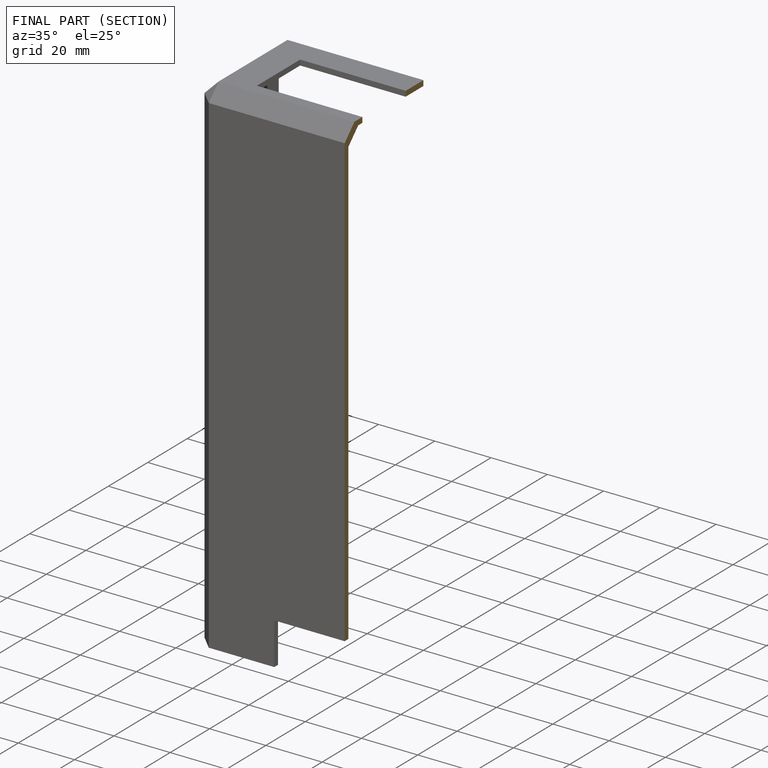
[diagram: finished part — half-section view (interior)]
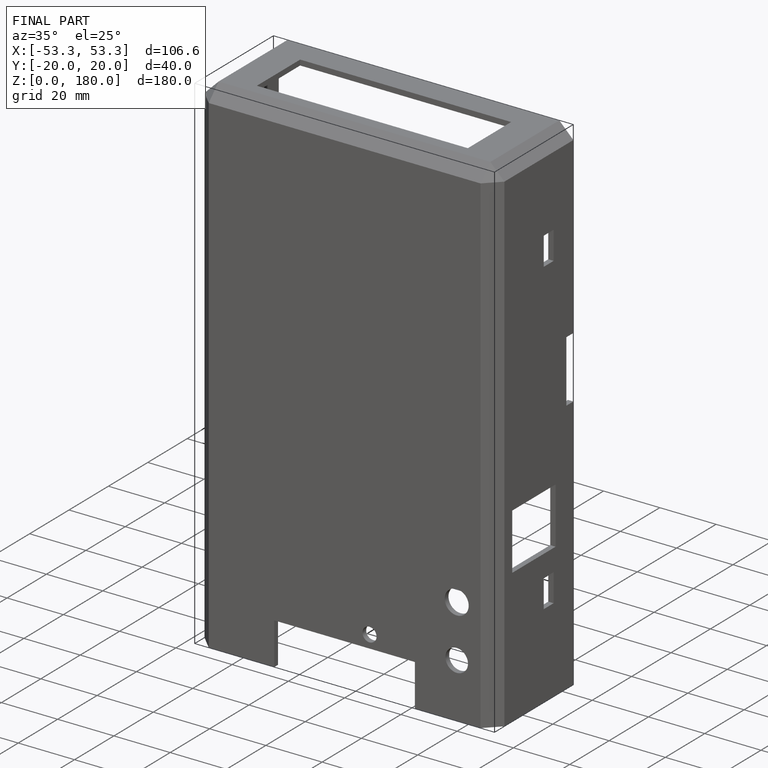
[diagram: finished part — iso view with bounding-box wireframe]
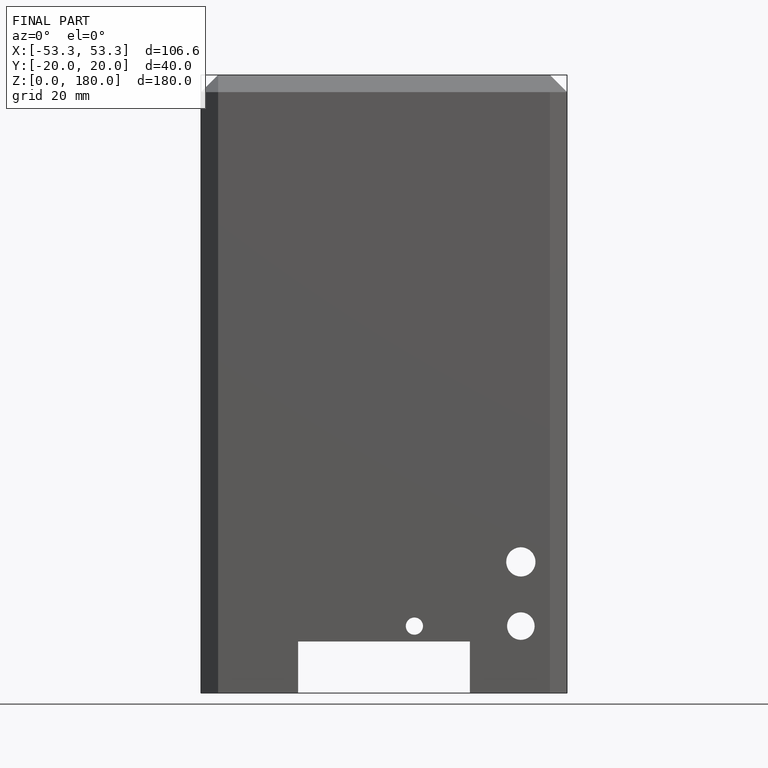
[diagram: finished part — front view with bounding-box wireframe]
